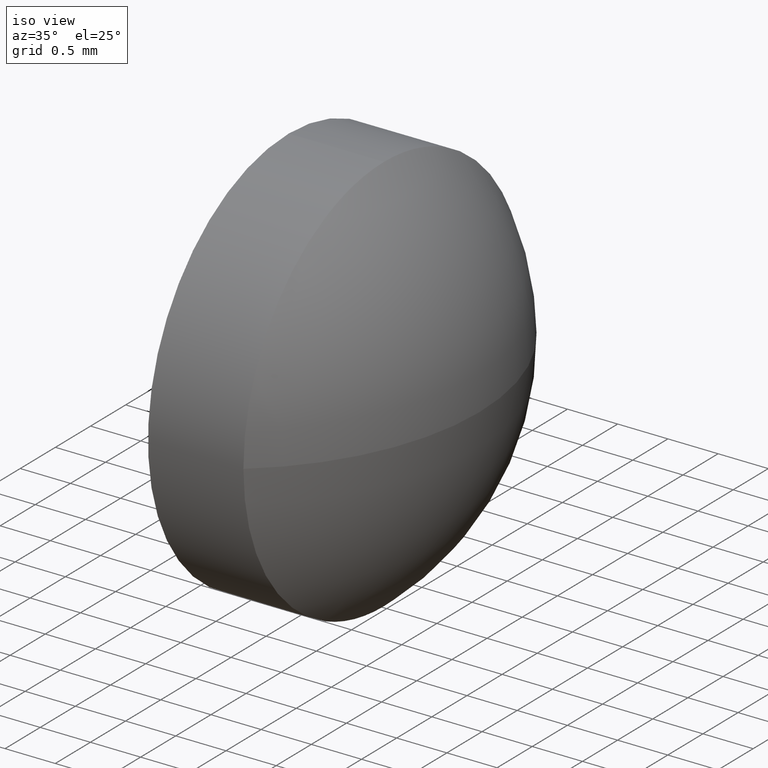
[diagram: clean part render]
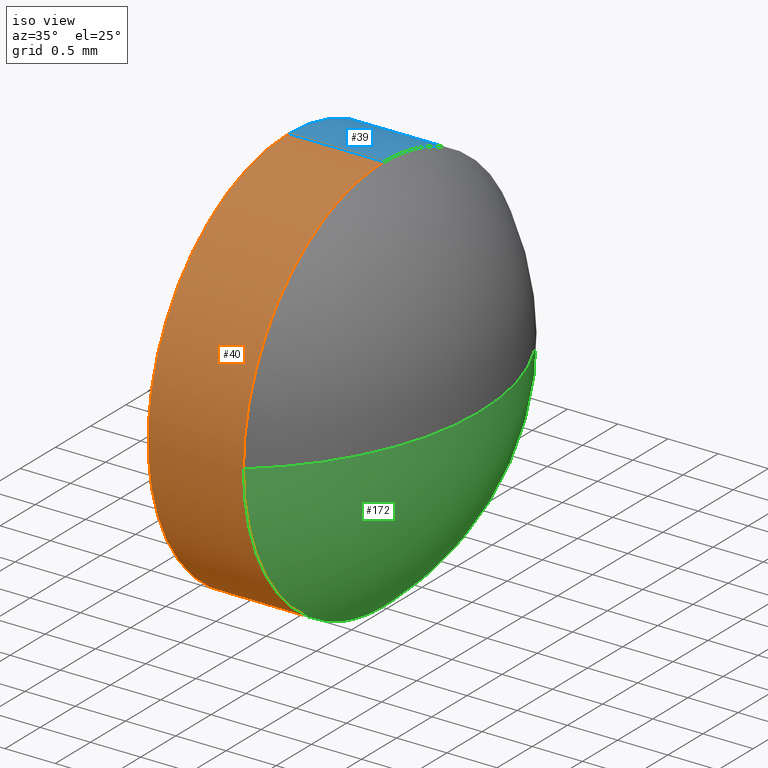
[diagram: same view with three faces highlighted in distinct colors, each labeled with its STEP entity id]
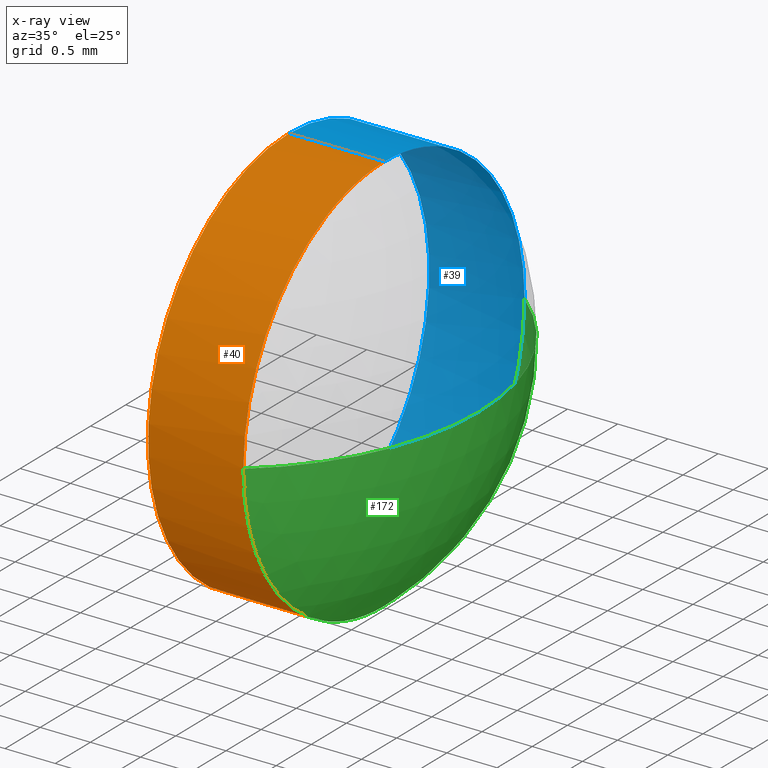
[diagram: x-ray of the same camera — body ghosted, the three highlighted faces saturated]
A machine part, iso view with three faces highlighted in distinct colors.
The next image is the same camera in x-ray (body ghosted, the three faces saturated) — at least one of them is partly hidden behind the body in this view.
Their STEP definitions:

[orange] entity #40 — the highlighted cylindrical surface (partial cylindrical patch) has radius 2 mm, axis along (-1, -0, -0).
#1 = ORIENTED_EDGE ( 'NONE', *, *, #148, .T. ) ;
#2 = EDGE_CURVE ( 'NONE', #59, #139, #153, .T. ) ;
#4 = DIRECTION ( 'NONE',  ( 0.0000000000000000000, 0.0000000000000000000, 1.000000000000000000 ) ) ;
#13 = VERTEX_POINT ( 'NONE', #61 ) ;
#14 = AXIS2_PLACEMENT_3D ( 'NONE', #44, #42, #30 ) ;
#17 = DIRECTION ( 'NONE',  ( 0.0000000000000000000, 0.0000000000000000000, 1.000000000000000000 ) ) ;
#18 = EDGE_CURVE ( 'NONE', #13, #108, #29, .T. ) ;
#20 = CARTESIAN_POINT ( 'NONE',  ( 388.0659552680862700, 29.36813379656234700, 2.000000000000001800 ) ) ;
#29 = CIRCLE ( 'NONE', #14, 2.000000000000001800 ) ;
#30 = DIRECTION ( 'NONE',  ( 0.0000000000000000000, 0.0000000000000000000, 1.000000000000000000 ) ) ;
#33 = EDGE_CURVE ( 'NONE', #108, #128, #100, .T. ) ;
#38 = CYLINDRICAL_SURFACE ( 'NONE', #89, 2.000000000000001800 ) ;
#40 = ADVANCED_FACE ( 'NONE', ( #84 ), #38, .T. ) ;
#42 = DIRECTION ( 'NONE',  ( -1.000000000000000000, -0.0000000000000000000, -0.0000000000000000000 ) ) ;
#44 = CARTESIAN_POINT ( 'NONE',  ( 388.0659552680862700, 29.36813379656234700, 0.0000000000000000000 ) ) ;
#48 = CARTESIAN_POINT ( 'NONE',  ( 386.7687047090909700, 29.36813379656234700, 2.000000000000001800 ) ) ;
#58 = EDGE_CURVE ( 'NONE', #13, #59, #183, .T. ) ;
#59 = VERTEX_POINT ( 'NONE', #63 ) ;
#61 = CARTESIAN_POINT ( 'NONE',  ( 388.0659552680862700, 29.36813379656234700, -2.000000000000001800 ) ) ;
#62 = AXIS2_PLACEMENT_3D ( 'NONE', #154, #90, #73 ) ;
#63 = CARTESIAN_POINT ( 'NONE',  ( 387.1159552680862800, 29.36813379656234700, -2.000000000000001800 ) ) ;
#64 = CARTESIAN_POINT ( 'NONE',  ( 386.7687047090909700, 29.36813379656234700, -2.000000000000001800 ) ) ;
#65 = DIRECTION ( 'NONE',  ( -1.000000000000000000, -0.0000000000000000000, -0.0000000000000000000 ) ) ;
#68 = ORIENTED_EDGE ( 'NONE', *, *, #58, .F. ) ;
#70 = VECTOR ( 'NONE', #130, 1000.000000000000000 ) ;
#73 = DIRECTION ( 'NONE',  ( 0.0000000000000000000, 0.0000000000000000000, 1.000000000000000000 ) ) ;
#83 = LINE ( 'NONE', #48, #70 ) ;
#84 = FACE_OUTER_BOUND ( 'NONE', #179, .T. ) ;
#89 = AXIS2_PLACEMENT_3D ( 'NONE', #176, #115, #4 ) ;
#90 = DIRECTION ( 'NONE',  ( -1.000000000000000000, -0.0000000000000000000, -0.0000000000000000000 ) ) ;
#95 = CARTESIAN_POINT ( 'NONE',  ( 388.0659552680862700, 27.36813379656234700, -2.449293598294707900E-016 ) ) ;
#100 = CIRCLE ( 'NONE', #62, 2.000000000000001800 ) ;
#108 = VERTEX_POINT ( 'NONE', #95 ) ;
#113 = DIRECTION ( 'NONE',  ( -1.000000000000000000, -0.0000000000000000000, -0.0000000000000000000 ) ) ;
#115 = DIRECTION ( 'NONE',  ( -1.000000000000000000, -0.0000000000000000000, -0.0000000000000000000 ) ) ;
#117 = CARTESIAN_POINT ( 'NONE',  ( 387.1159552680862800, 29.36813379656234700, 0.0000000000000000000 ) ) ;
#123 = ORIENTED_EDGE ( 'NONE', *, *, #2, .F. ) ;
#125 = ORIENTED_EDGE ( 'NONE', *, *, #33, .T. ) ;
#128 = VERTEX_POINT ( 'NONE', #20 ) ;
#130 = DIRECTION ( 'NONE',  ( -1.000000000000000000, -0.0000000000000000000, -0.0000000000000000000 ) ) ;
#136 = ORIENTED_EDGE ( 'NONE', *, *, #18, .T. ) ;
#138 = AXIS2_PLACEMENT_3D ( 'NONE', #117, #113, #17 ) ;
#139 = VERTEX_POINT ( 'NONE', #160 ) ;
#148 = EDGE_CURVE ( 'NONE', #128, #139, #83, .T. ) ;
#152 = VECTOR ( 'NONE', #65, 1000.000000000000000 ) ;
#153 = CIRCLE ( 'NONE', #138, 2.000000000000001800 ) ;
#154 = CARTESIAN_POINT ( 'NONE',  ( 388.0659552680862700, 29.36813379656234700, 0.0000000000000000000 ) ) ;
#160 = CARTESIAN_POINT ( 'NONE',  ( 387.1159552680862800, 29.36813379656234700, 2.000000000000001800 ) ) ;
#176 = CARTESIAN_POINT ( 'NONE',  ( 386.7687047090909700, 29.36813379656234700, 0.0000000000000000000 ) ) ;
#179 = EDGE_LOOP ( 'NONE', ( #68, #136, #125, #1, #123 ) ) ;
#183 = LINE ( 'NONE', #64, #152 ) ;

[blue] entity #39 — the highlighted cylindrical surface (partial cylindrical patch) has radius 2 mm, axis along (-1, -0, -0).
#3 = CYLINDRICAL_SURFACE ( 'NONE', #159, 2.000000000000001800 ) ;
#6 = DIRECTION ( 'NONE',  ( 0.0000000000000000000, 0.0000000000000000000, 1.000000000000000000 ) ) ;
#13 = VERTEX_POINT ( 'NONE', #61 ) ;
#20 = CARTESIAN_POINT ( 'NONE',  ( 388.0659552680862700, 29.36813379656234700, 2.000000000000001800 ) ) ;
#36 = EDGE_CURVE ( 'NONE', #139, #59, #149, .T. ) ;
#37 = FACE_OUTER_BOUND ( 'NONE', #77, .T. ) ;
#39 = ADVANCED_FACE ( 'NONE', ( #37 ), #3, .T. ) ;
#48 = CARTESIAN_POINT ( 'NONE',  ( 386.7687047090909700, 29.36813379656234700, 2.000000000000001800 ) ) ;
#53 = DIRECTION ( 'NONE',  ( 0.0000000000000000000, 0.0000000000000000000, 1.000000000000000000 ) ) ;
#58 = EDGE_CURVE ( 'NONE', #13, #59, #183, .T. ) ;
#59 = VERTEX_POINT ( 'NONE', #63 ) ;
#60 = EDGE_CURVE ( 'NONE', #128, #143, #114, .T. ) ;
#61 = CARTESIAN_POINT ( 'NONE',  ( 388.0659552680862700, 29.36813379656234700, -2.000000000000001800 ) ) ;
#63 = CARTESIAN_POINT ( 'NONE',  ( 387.1159552680862800, 29.36813379656234700, -2.000000000000001800 ) ) ;
#64 = CARTESIAN_POINT ( 'NONE',  ( 386.7687047090909700, 29.36813379656234700, -2.000000000000001800 ) ) ;
#65 = DIRECTION ( 'NONE',  ( -1.000000000000000000, -0.0000000000000000000, -0.0000000000000000000 ) ) ;
#70 = VECTOR ( 'NONE', #130, 1000.000000000000000 ) ;
#71 = ORIENTED_EDGE ( 'NONE', *, *, #148, .F. ) ;
#75 = CARTESIAN_POINT ( 'NONE',  ( 386.7687047090909700, 29.36813379656234700, 0.0000000000000000000 ) ) ;
#77 = EDGE_LOOP ( 'NONE', ( #118, #111, #104, #71, #81 ) ) ;
#80 = AXIS2_PLACEMENT_3D ( 'NONE', #157, #122, #53 ) ;
#81 = ORIENTED_EDGE ( 'NONE', *, *, #60, .T. ) ;
#83 = LINE ( 'NONE', #48, #70 ) ;
#87 = DIRECTION ( 'NONE',  ( 0.0000000000000000000, 0.0000000000000000000, 1.000000000000000000 ) ) ;
#88 = DIRECTION ( 'NONE',  ( 0.0000000000000000000, 0.0000000000000000000, 1.000000000000000000 ) ) ;
#92 = CARTESIAN_POINT ( 'NONE',  ( 388.0659552680862700, 31.36813379656235100, 0.0000000000000000000 ) ) ;
#103 = DIRECTION ( 'NONE',  ( -1.000000000000000000, -0.0000000000000000000, -0.0000000000000000000 ) ) ;
#104 = ORIENTED_EDGE ( 'NONE', *, *, #36, .F. ) ;
#105 = CARTESIAN_POINT ( 'NONE',  ( 388.0659552680862700, 29.36813379656234700, 0.0000000000000000000 ) ) ;
#110 = EDGE_CURVE ( 'NONE', #143, #13, #155, .T. ) ;
#111 = ORIENTED_EDGE ( 'NONE', *, *, #58, .T. ) ;
#114 = CIRCLE ( 'NONE', #173, 2.000000000000001800 ) ;
#116 = CARTESIAN_POINT ( 'NONE',  ( 387.1159552680862800, 29.36813379656234700, 0.0000000000000000000 ) ) ;
#118 = ORIENTED_EDGE ( 'NONE', *, *, #110, .T. ) ;
#122 = DIRECTION ( 'NONE',  ( -1.000000000000000000, -0.0000000000000000000, -0.0000000000000000000 ) ) ;
#128 = VERTEX_POINT ( 'NONE', #20 ) ;
#129 = DIRECTION ( 'NONE',  ( -1.000000000000000000, -0.0000000000000000000, -0.0000000000000000000 ) ) ;
#130 = DIRECTION ( 'NONE',  ( -1.000000000000000000, -0.0000000000000000000, -0.0000000000000000000 ) ) ;
#137 = AXIS2_PLACEMENT_3D ( 'NONE', #116, #103, #88 ) ;
#139 = VERTEX_POINT ( 'NONE', #160 ) ;
#143 = VERTEX_POINT ( 'NONE', #92 ) ;
#148 = EDGE_CURVE ( 'NONE', #128, #139, #83, .T. ) ;
#149 = CIRCLE ( 'NONE', #137, 2.000000000000001800 ) ;
#152 = VECTOR ( 'NONE', #65, 1000.000000000000000 ) ;
#155 = CIRCLE ( 'NONE', #80, 2.000000000000001800 ) ;
#157 = CARTESIAN_POINT ( 'NONE',  ( 388.0659552680862700, 29.36813379656234700, 0.0000000000000000000 ) ) ;
#158 = DIRECTION ( 'NONE',  ( -1.000000000000000000, -0.0000000000000000000, -0.0000000000000000000 ) ) ;
#159 = AXIS2_PLACEMENT_3D ( 'NONE', #75, #129, #87 ) ;
#160 = CARTESIAN_POINT ( 'NONE',  ( 387.1159552680862800, 29.36813379656234700, 2.000000000000001800 ) ) ;
#173 = AXIS2_PLACEMENT_3D ( 'NONE', #105, #158, #6 ) ;
#183 = LINE ( 'NONE', #64, #152 ) ;

[green] entity #172 — the highlighted spherical surface has radius 2.5803 mm.
#13 = VERTEX_POINT ( 'NONE', #61 ) ;
#14 = AXIS2_PLACEMENT_3D ( 'NONE', #44, #42, #30 ) ;
#18 = EDGE_CURVE ( 'NONE', #13, #108, #29, .T. ) ;
#19 = DIRECTION ( 'NONE',  ( -0.0000000000000000000, 0.0000000000000000000, -1.000000000000000000 ) ) ;
#21 = CARTESIAN_POINT ( 'NONE',  ( 386.4356921101915500, 29.36813379656234700, 0.0000000000000000000 ) ) ;
#24 = CARTESIAN_POINT ( 'NONE',  ( 389.0159552680863200, 29.36813379656234700, 0.0000000000000000000 ) ) ;
#25 = SPHERICAL_SURFACE ( 'NONE', #140, 2.580263157894725300 ) ;
#29 = CIRCLE ( 'NONE', #14, 2.000000000000001800 ) ;
#30 = DIRECTION ( 'NONE',  ( 0.0000000000000000000, 0.0000000000000000000, 1.000000000000000000 ) ) ;
#42 = DIRECTION ( 'NONE',  ( -1.000000000000000000, -0.0000000000000000000, -0.0000000000000000000 ) ) ;
#44 = CARTESIAN_POINT ( 'NONE',  ( 388.0659552680862700, 29.36813379656234700, 0.0000000000000000000 ) ) ;
#46 = CIRCLE ( 'NONE', #47, 2.580263157894724400 ) ;
#47 = AXIS2_PLACEMENT_3D ( 'NONE', #21, #78, #106 ) ;
#49 = CARTESIAN_POINT ( 'NONE',  ( 386.4356921101915500, 29.36813379656234700, 0.0000000000000000000 ) ) ;
#51 = EDGE_CURVE ( 'NONE', #175, #108, #170, .T. ) ;
#53 = DIRECTION ( 'NONE',  ( 0.0000000000000000000, 0.0000000000000000000, 1.000000000000000000 ) ) ;
#54 = EDGE_CURVE ( 'NONE', #175, #143, #46, .T. ) ;
#61 = CARTESIAN_POINT ( 'NONE',  ( 388.0659552680862700, 29.36813379656234700, -2.000000000000001800 ) ) ;
#69 = ORIENTED_EDGE ( 'NONE', *, *, #51, .T. ) ;
#72 = EDGE_LOOP ( 'NONE', ( #185, #69, #82, #107 ) ) ;
#78 = DIRECTION ( 'NONE',  ( -0.0000000000000000000, 0.0000000000000000000, 1.000000000000000000 ) ) ;
#80 = AXIS2_PLACEMENT_3D ( 'NONE', #157, #122, #53 ) ;
#82 = ORIENTED_EDGE ( 'NONE', *, *, #18, .F. ) ;
#92 = CARTESIAN_POINT ( 'NONE',  ( 388.0659552680862700, 31.36813379656235100, 0.0000000000000000000 ) ) ;
#94 = DIRECTION ( 'NONE',  ( 0.0000000000000000000, 1.000000000000000000, 0.0000000000000000000 ) ) ;
#95 = CARTESIAN_POINT ( 'NONE',  ( 388.0659552680862700, 27.36813379656234700, -2.449293598294707900E-016 ) ) ;
#106 = DIRECTION ( 'NONE',  ( 1.000000000000000000, 0.0000000000000000000, 0.0000000000000000000 ) ) ;
#107 = ORIENTED_EDGE ( 'NONE', *, *, #110, .F. ) ;
#108 = VERTEX_POINT ( 'NONE', #95 ) ;
#110 = EDGE_CURVE ( 'NONE', #143, #13, #155, .T. ) ;
#119 = DIRECTION ( 'NONE',  ( 0.0000000000000000000, 1.000000000000000000, 1.224646799147353700E-016 ) ) ;
#121 = DIRECTION ( 'NONE',  ( 0.0000000000000000000, 1.224646799147353200E-016, -1.000000000000000000 ) ) ;
#122 = DIRECTION ( 'NONE',  ( -1.000000000000000000, -0.0000000000000000000, -0.0000000000000000000 ) ) ;
#126 = AXIS2_PLACEMENT_3D ( 'NONE', #49, #121, #119 ) ;
#140 = AXIS2_PLACEMENT_3D ( 'NONE', #182, #19, #94 ) ;
#143 = VERTEX_POINT ( 'NONE', #92 ) ;
#155 = CIRCLE ( 'NONE', #80, 2.000000000000001800 ) ;
#157 = CARTESIAN_POINT ( 'NONE',  ( 388.0659552680862700, 29.36813379656234700, 0.0000000000000000000 ) ) ;
#170 = CIRCLE ( 'NONE', #126, 2.580263157894724400 ) ;
#172 = ADVANCED_FACE ( 'NONE', ( #174 ), #25, .T. ) ;
#174 = FACE_OUTER_BOUND ( 'NONE', #72, .T. ) ;
#175 = VERTEX_POINT ( 'NONE', #24 ) ;
#182 = CARTESIAN_POINT ( 'NONE',  ( 386.4356921101915500, 29.36813379656234700, 0.0000000000000000000 ) ) ;
#185 = ORIENTED_EDGE ( 'NONE', *, *, #54, .F. ) ;